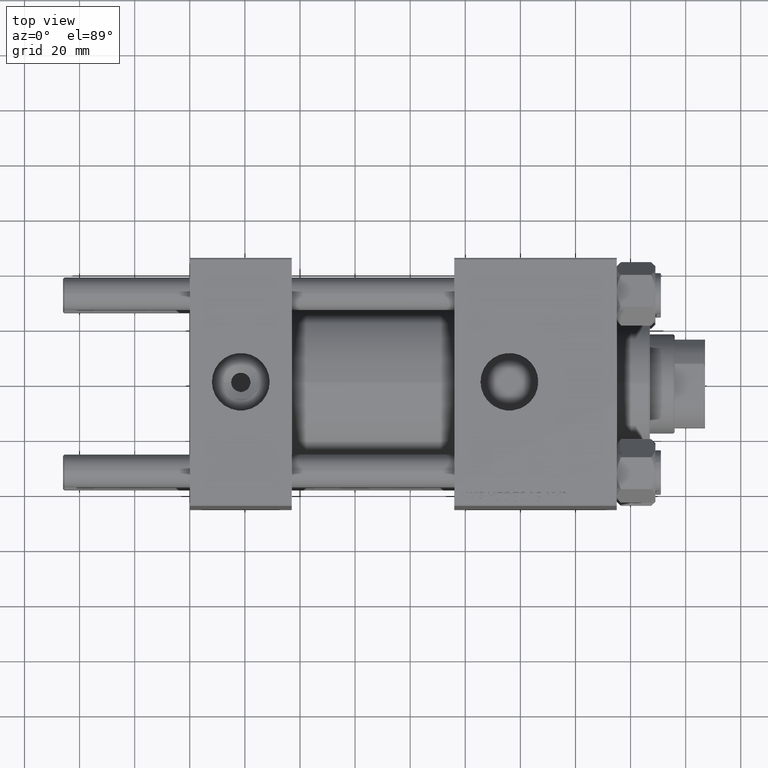
[diagram: clean part render]
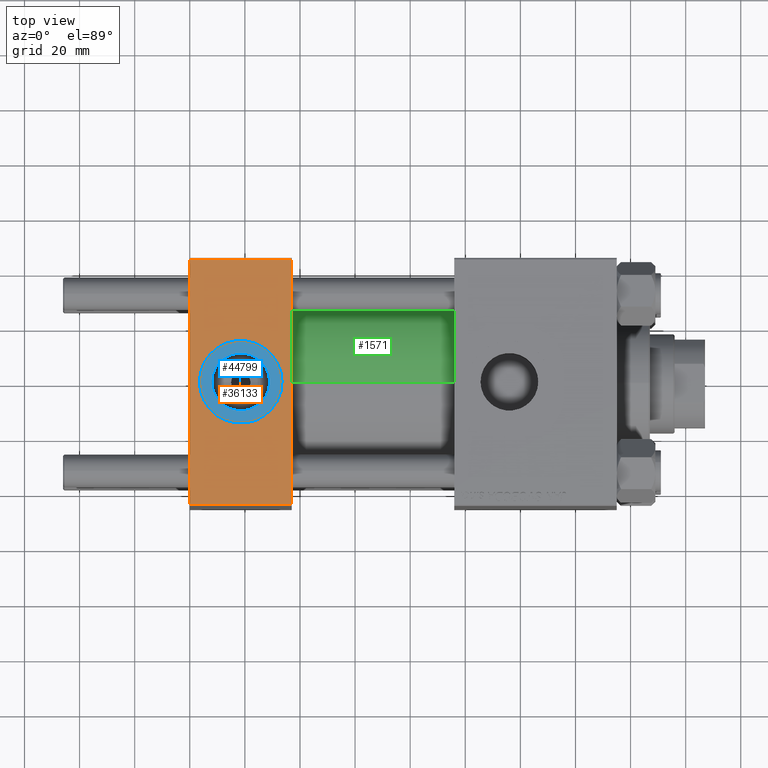
[diagram: same view with three faces highlighted in distinct colors, each labeled with its STEP entity id]
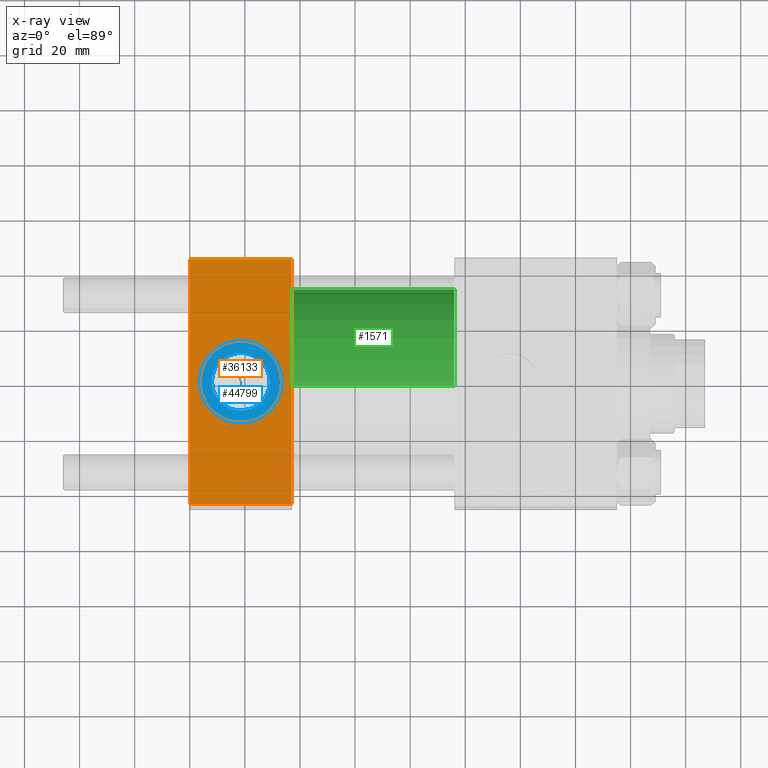
[diagram: x-ray of the same camera — body ghosted, the three highlighted faces saturated]
A machine part, top view with three faces highlighted in distinct colors.
The next image is the same camera in x-ray (body ghosted, the three faces saturated) — at least one of them is partly hidden behind the body in this view.
Their STEP definitions:

[orange] entity #36133 — the highlighted planar face has unit normal (0, 0, -1).
#1996 = DIRECTION ( 'NONE',  ( 0.000000000000000000, 1.541976423090495633E-16, -1.000000000000000000 ) ) ;
#2473 = CARTESIAN_POINT ( 'NONE',  ( 37.00000000000000000, -44.49999999999995737, 45.00000000000000000 ) ) ;
#2561 = ORIENTED_EDGE ( 'NONE', *, *, #37797, .F. ) ;
#2921 = AXIS2_PLACEMENT_3D ( 'NONE', #39746, #23823, #39491 ) ;
#3087 = LINE ( 'NONE', #14695, #18147 ) ;
#4206 = ORIENTED_EDGE ( 'NONE', *, *, #39895, .F. ) ;
#5270 = DIRECTION ( 'NONE',  ( 0.000000000000000000, 1.000000000000000000, 1.541976423090495633E-16 ) ) ;
#5416 = VERTEX_POINT ( 'NONE', #44042 ) ;
#5627 = CARTESIAN_POINT ( 'NONE',  ( 0.000000000000000000, 44.49999999999998579, 45.00000000000001421 ) ) ;
#6019 = CARTESIAN_POINT ( 'NONE',  ( 37.00000000000000000, 44.99999999999998579, 45.00000000000001421 ) ) ;
#6901 = DIRECTION ( 'NONE',  ( 1.000000000000000000, 0.000000000000000000, 0.000000000000000000 ) ) ;
#7314 = DIRECTION ( 'NONE',  ( 1.000000000000000000, 0.000000000000000000, 0.000000000000000000 ) ) ;
#7901 = VECTOR ( 'NONE', #6901, 1000.000000000000000 ) ;
#12125 = DIRECTION ( 'NONE',  ( -1.000000000000000000, 0.000000000000000000, 0.000000000000000000 ) ) ;
#14695 = CARTESIAN_POINT ( 'NONE',  ( 37.00000000000000000, 44.99999999999998579, 45.00000000000001421 ) ) ;
#14819 = EDGE_CURVE ( 'NONE', #22033, #5416, #39123, .T. ) ;
#15779 = CIRCLE ( 'NONE', #26244, 15.00000000000000355 ) ;
#18147 = VECTOR ( 'NONE', #19215, 1000.000000000000000 ) ;
#18500 = ORIENTED_EDGE ( 'NONE', *, *, #35314, .T. ) ;
#19215 = DIRECTION ( 'NONE',  ( 0.000000000000000000, -1.000000000000000000, -1.541976423090495387E-16 ) ) ;
#20663 = CIRCLE ( 'NONE', #2921, 15.00000000000000355 ) ;
#20921 = CARTESIAN_POINT ( 'NONE',  ( 3.499999999999997780, -6.836647181163008250E-15, 45.00000000000000711 ) ) ;
#21648 = CARTESIAN_POINT ( 'NONE',  ( 0.000000000000000000, 44.99999999999998579, 45.00000000000001421 ) ) ;
#22033 = VERTEX_POINT ( 'NONE', #39992 ) ;
#22237 = CARTESIAN_POINT ( 'NONE',  ( 33.50000000000000000, -8.673617379884038628E-15, 45.00000000000000711 ) ) ;
#22362 = EDGE_CURVE ( 'NONE', #41346, #36949, #15779, .T. ) ;
#23823 = DIRECTION ( 'NONE',  ( 0.000000000000000000, 0.000000000000000000, 1.000000000000000000 ) ) ;
#25115 = VERTEX_POINT ( 'NONE', #37527 ) ;
#26032 = VECTOR ( 'NONE', #12125, 1000.000000000000000 ) ;
#26244 = AXIS2_PLACEMENT_3D ( 'NONE', #26487, #30773, #7314 ) ;
#26487 = CARTESIAN_POINT ( 'NONE',  ( 18.50000000000000000, -8.673617379884038628E-15, 45.00000000000000711 ) ) ;
#27394 = EDGE_LOOP ( 'NONE', ( #43380, #4206 ) ) ;
#27531 = VERTEX_POINT ( 'NONE', #2473 ) ;
#29130 = ORIENTED_EDGE ( 'NONE', *, *, #14819, .T. ) ;
#29820 = AXIS2_PLACEMENT_3D ( 'NONE', #6019, #1996, #5270 ) ;
#30773 = DIRECTION ( 'NONE',  ( 0.000000000000000000, 0.000000000000000000, 1.000000000000000000 ) ) ;
#30984 = EDGE_CURVE ( 'NONE', #25115, #27531, #33418, .T. ) ;
#32233 = VECTOR ( 'NONE', #45110, 1000.000000000000000 ) ;
#32516 = FACE_OUTER_BOUND ( 'NONE', #39047, .T. ) ;
#33243 = LINE ( 'NONE', #21648, #32233 ) ;
#33418 = LINE ( 'NONE', #41476, #7901 ) ;
#35314 = EDGE_CURVE ( 'NONE', #5416, #25115, #33243, .T. ) ;
#36133 = ADVANCED_FACE ( 'NONE', ( #39838, #32516 ), #39577, .F. ) ;
#36949 = VERTEX_POINT ( 'NONE', #20921 ) ;
#37527 = CARTESIAN_POINT ( 'NONE',  ( 0.000000000000000000, -44.49999999999995737, 45.00000000000000000 ) ) ;
#37797 = EDGE_CURVE ( 'NONE', #22033, #27531, #3087, .T. ) ;
#39047 = EDGE_LOOP ( 'NONE', ( #18500, #48039, #2561, #29130 ) ) ;
#39123 = LINE ( 'NONE', #5627, #26032 ) ;
#39491 = DIRECTION ( 'NONE',  ( 1.000000000000000000, 0.000000000000000000, 0.000000000000000000 ) ) ;
#39577 = PLANE ( 'NONE',  #29820 ) ;
#39746 = CARTESIAN_POINT ( 'NONE',  ( 18.50000000000000000, -8.673617379884038628E-15, 45.00000000000000711 ) ) ;
#39838 = FACE_BOUND ( 'NONE', #27394, .T. ) ;
#39895 = EDGE_CURVE ( 'NONE', #36949, #41346, #20663, .T. ) ;
#39992 = CARTESIAN_POINT ( 'NONE',  ( 37.00000000000000000, 44.49999999999998579, 45.00000000000001421 ) ) ;
#41346 = VERTEX_POINT ( 'NONE', #22237 ) ;
#41476 = CARTESIAN_POINT ( 'NONE',  ( 37.00000000000000000, -44.49999999999998579, 45.00000000000000000 ) ) ;
#43380 = ORIENTED_EDGE ( 'NONE', *, *, #22362, .F. ) ;
#44042 = CARTESIAN_POINT ( 'NONE',  ( 0.000000000000000000, 44.49999999999998579, 45.00000000000001421 ) ) ;
#45110 = DIRECTION ( 'NONE',  ( 0.000000000000000000, -1.000000000000000000, -1.541976423090495387E-16 ) ) ;
#48039 = ORIENTED_EDGE ( 'NONE', *, *, #30984, .T. ) ;

[blue] entity #44799 — the highlighted planar face has unit normal (0, 0, 1).
#2624 = FACE_OUTER_BOUND ( 'NONE', #5419, .T. ) ;
#4973 = ORIENTED_EDGE ( 'NONE', *, *, #41216, .T. ) ;
#5419 = EDGE_LOOP ( 'NONE', ( #4973, #44334 ) ) ;
#7353 = EDGE_CURVE ( 'NONE', #15460, #27485, #38011, .T. ) ;
#7462 = CARTESIAN_POINT ( 'NONE',  ( 18.50000000000000000, -8.673617379884038628E-15, 44.80000000000000426 ) ) ;
#9161 = DIRECTION ( 'NONE',  ( 1.000000000000000000, 0.000000000000000000, 0.000000000000000000 ) ) ;
#9939 = CARTESIAN_POINT ( 'NONE',  ( 18.50000000000000000, -8.673617379884038628E-15, 44.80000000000000426 ) ) ;
#10679 = DIRECTION ( 'NONE',  ( 0.000000000000000000, 0.000000000000000000, 1.000000000000000000 ) ) ;
#15460 = VERTEX_POINT ( 'NONE', #24230 ) ;
#15982 = DIRECTION ( 'NONE',  ( 0.000000000000000000, 0.000000000000000000, 1.000000000000000000 ) ) ;
#17130 = CARTESIAN_POINT ( 'NONE',  ( 3.499999999999997780, -6.836647181163008250E-15, 44.80000000000000426 ) ) ;
#19162 = ORIENTED_EDGE ( 'NONE', *, *, #7353, .F. ) ;
#19831 = DIRECTION ( 'NONE',  ( 0.000000000000000000, 0.000000000000000000, 1.000000000000000000 ) ) ;
#20077 = DIRECTION ( 'NONE',  ( 1.000000000000000000, 0.000000000000000000, 0.000000000000000000 ) ) ;
#22265 = FACE_BOUND ( 'NONE', #47968, .T. ) ;
#22300 = CARTESIAN_POINT ( 'NONE',  ( 18.50000000000000000, -8.673617379884038628E-15, 44.80000000000000426 ) ) ;
#22609 = CARTESIAN_POINT ( 'NONE',  ( 33.50000000000000000, -8.673617379884038628E-15, 44.80000000000000426 ) ) ;
#24153 = CARTESIAN_POINT ( 'NONE',  ( 28.98000000000000043, -8.673617379884038628E-15, 44.80000000000000426 ) ) ;
#24230 = CARTESIAN_POINT ( 'NONE',  ( 8.019999999999999574, -7.390187534377611561E-15, 44.80000000000000426 ) ) ;
#25712 = VERTEX_POINT ( 'NONE', #17130 ) ;
#26047 = PLANE ( 'NONE',  #43373 ) ;
#27485 = VERTEX_POINT ( 'NONE', #24153 ) ;
#27985 = ORIENTED_EDGE ( 'NONE', *, *, #42209, .F. ) ;
#28335 = EDGE_CURVE ( 'NONE', #25712, #41918, #31171, .T. ) ;
#31126 = CIRCLE ( 'NONE', #44073, 15.00000000000000355 ) ;
#31171 = CIRCLE ( 'NONE', #45713, 15.00000000000000355 ) ;
#32501 = DIRECTION ( 'NONE',  ( 0.000000000000000000, 0.000000000000000000, 1.000000000000000000 ) ) ;
#33918 = DIRECTION ( 'NONE',  ( 1.000000000000000000, 0.000000000000000000, 0.000000000000000000 ) ) ;
#36033 = CARTESIAN_POINT ( 'NONE',  ( 18.50000000000000000, -8.673617379884038628E-15, 44.80000000000000426 ) ) ;
#37680 = DIRECTION ( 'NONE',  ( 1.000000000000000000, 0.000000000000000000, -0.000000000000000000 ) ) ;
#37718 = DIRECTION ( 'NONE',  ( 0.000000000000000000, 0.000000000000000000, 1.000000000000000000 ) ) ;
#38011 = CIRCLE ( 'NONE', #39631, 10.48000000000000043 ) ;
#38447 = AXIS2_PLACEMENT_3D ( 'NONE', #22300, #37718, #33918 ) ;
#39631 = AXIS2_PLACEMENT_3D ( 'NONE', #36033, #32501, #39821 ) ;
#39821 = DIRECTION ( 'NONE',  ( 1.000000000000000000, 0.000000000000000000, 0.000000000000000000 ) ) ;
#40064 = CIRCLE ( 'NONE', #38447, 10.48000000000000043 ) ;
#41216 = EDGE_CURVE ( 'NONE', #41918, #25712, #31126, .T. ) ;
#41918 = VERTEX_POINT ( 'NONE', #22609 ) ;
#42209 = EDGE_CURVE ( 'NONE', #27485, #15460, #40064, .T. ) ;
#43373 = AXIS2_PLACEMENT_3D ( 'NONE', #9939, #10679, #37680 ) ;
#44073 = AXIS2_PLACEMENT_3D ( 'NONE', #47299, #15982, #9161 ) ;
#44334 = ORIENTED_EDGE ( 'NONE', *, *, #28335, .T. ) ;
#44799 = ADVANCED_FACE ( 'NONE', ( #22265, #2624 ), #26047, .T. ) ;
#45713 = AXIS2_PLACEMENT_3D ( 'NONE', #7462, #19831, #20077 ) ;
#47299 = CARTESIAN_POINT ( 'NONE',  ( 18.50000000000000000, -8.673617379884038628E-15, 44.80000000000000426 ) ) ;
#47968 = EDGE_LOOP ( 'NONE', ( #27985, #19162 ) ) ;

[green] entity #1571 — the highlighted cylindrical surface (partial cylindrical patch) has radius 34.5 mm, axis along (-1, -0, -0).
#1297 = DIRECTION ( 'NONE',  ( 0.000000000000000000, 0.000000000000000000, 1.000000000000000000 ) ) ;
#1571 = ADVANCED_FACE ( 'NONE', ( #7509 ), #34026, .T. ) ;
#3144 = ORIENTED_EDGE ( 'NONE', *, *, #11013, .T. ) ;
#4634 = VECTOR ( 'NONE', #36415, 1000.000000000000000 ) ;
#6626 = CARTESIAN_POINT ( 'NONE',  ( 96.00000000000000000, 0.000000000000000000, 0.000000000000000000 ) ) ;
#7509 = FACE_OUTER_BOUND ( 'NONE', #36968, .T. ) ;
#7919 = CARTESIAN_POINT ( 'NONE',  ( 37.00000000000000000, 0.000000000000000000, 34.49999999999999289 ) ) ;
#8368 = DIRECTION ( 'NONE',  ( 1.000000000000000000, -0.000000000000000000, 0.000000000000000000 ) ) ;
#9938 = DIRECTION ( 'NONE',  ( 0.000000000000000000, 0.000000000000000000, -1.000000000000000000 ) ) ;
#10390 = CARTESIAN_POINT ( 'NONE',  ( 96.00000000000000000, 0.000000000000000000, 34.49999999999999289 ) ) ;
#10678 = DIRECTION ( 'NONE',  ( 1.000000000000000000, 0.000000000000000000, 0.000000000000000000 ) ) ;
#10962 = CARTESIAN_POINT ( 'NONE',  ( 96.00000000000000000, 4.225031457058367344E-15, -34.49999999999999289 ) ) ;
#11013 = EDGE_CURVE ( 'NONE', #30391, #48712, #49411, .T. ) ;
#11877 = CARTESIAN_POINT ( 'NONE',  ( 37.00000000000000000, 4.225031457058367344E-15, -34.49999999999999289 ) ) ;
#12064 = CARTESIAN_POINT ( 'NONE',  ( 96.00000000000000000, 0.000000000000000000, 34.49999999999999289 ) ) ;
#15742 = AXIS2_PLACEMENT_3D ( 'NONE', #6626, #10678, #9938 ) ;
#16368 = AXIS2_PLACEMENT_3D ( 'NONE', #32337, #8368, #1297 ) ;
#18631 = CARTESIAN_POINT ( 'NONE',  ( 96.00000000000000000, 0.000000000000000000, 0.000000000000000000 ) ) ;
#21386 = EDGE_CURVE ( 'NONE', #34361, #26200, #24639, .T. ) ;
#23540 = ORIENTED_EDGE ( 'NONE', *, *, #30177, .F. ) ;
#24639 = CIRCLE ( 'NONE', #15742, 34.49999999999999289 ) ;
#26200 = VERTEX_POINT ( 'NONE', #12064 ) ;
#26488 = EDGE_CURVE ( 'NONE', #34361, #30391, #33231, .T. ) ;
#28719 = VECTOR ( 'NONE', #36784, 1000.000000000000000 ) ;
#30177 = EDGE_CURVE ( 'NONE', #26200, #48712, #49021, .T. ) ;
#30391 = VERTEX_POINT ( 'NONE', #11877 ) ;
#31222 = DIRECTION ( 'NONE',  ( -1.000000000000000000, -0.000000000000000000, -0.000000000000000000 ) ) ;
#32337 = CARTESIAN_POINT ( 'NONE',  ( 37.00000000000000000, 0.000000000000000000, 0.000000000000000000 ) ) ;
#33231 = LINE ( 'NONE', #48663, #28719 ) ;
#34026 = CYLINDRICAL_SURFACE ( 'NONE', #34763, 34.49999999999999289 ) ;
#34115 = ORIENTED_EDGE ( 'NONE', *, *, #26488, .T. ) ;
#34361 = VERTEX_POINT ( 'NONE', #10962 ) ;
#34763 = AXIS2_PLACEMENT_3D ( 'NONE', #18631, #31222, #46651 ) ;
#36415 = DIRECTION ( 'NONE',  ( -1.000000000000000000, -0.000000000000000000, -0.000000000000000000 ) ) ;
#36784 = DIRECTION ( 'NONE',  ( -1.000000000000000000, -0.000000000000000000, -0.000000000000000000 ) ) ;
#36968 = EDGE_LOOP ( 'NONE', ( #39384, #34115, #3144, #23540 ) ) ;
#39384 = ORIENTED_EDGE ( 'NONE', *, *, #21386, .F. ) ;
#46651 = DIRECTION ( 'NONE',  ( 0.000000000000000000, 0.000000000000000000, 1.000000000000000000 ) ) ;
#48663 = CARTESIAN_POINT ( 'NONE',  ( 96.00000000000000000, 4.225031457058367344E-15, -34.49999999999999289 ) ) ;
#48712 = VERTEX_POINT ( 'NONE', #7919 ) ;
#49021 = LINE ( 'NONE', #10390, #4634 ) ;
#49411 = CIRCLE ( 'NONE', #16368, 34.49999999999999289 ) ;